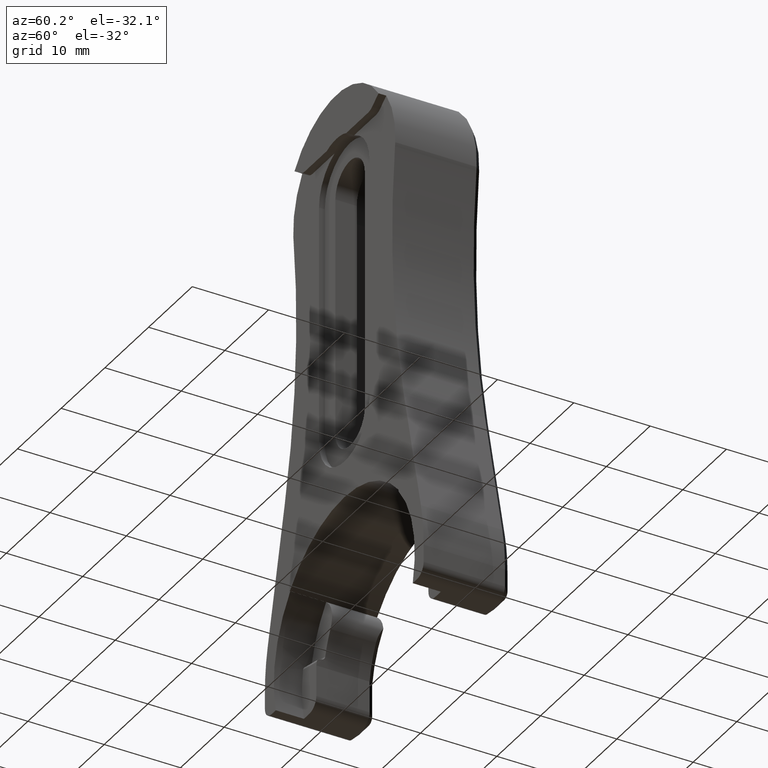
[diagram: clean part render]
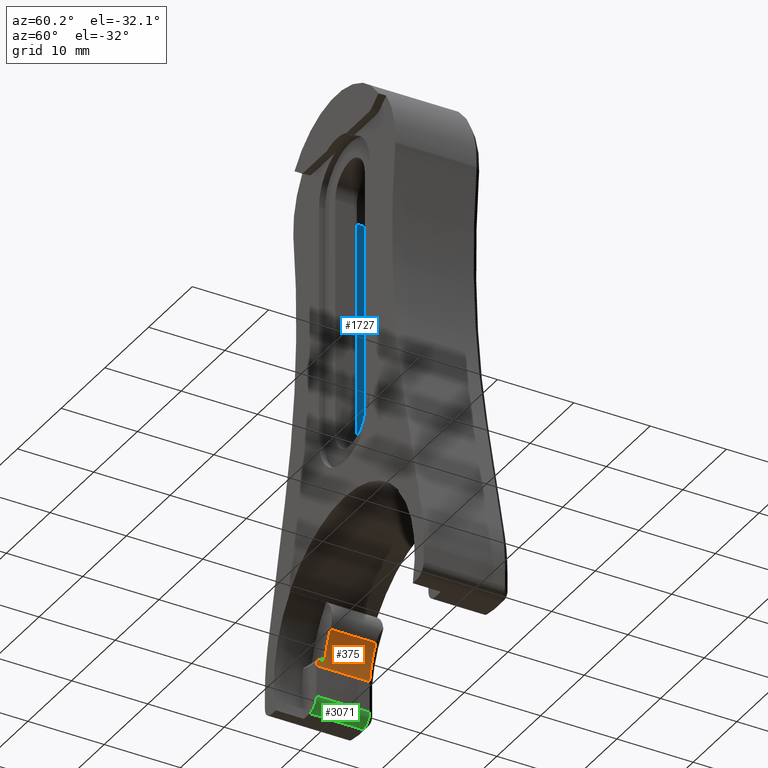
[diagram: same view with three faces highlighted in distinct colors, each labeled with its STEP entity id]
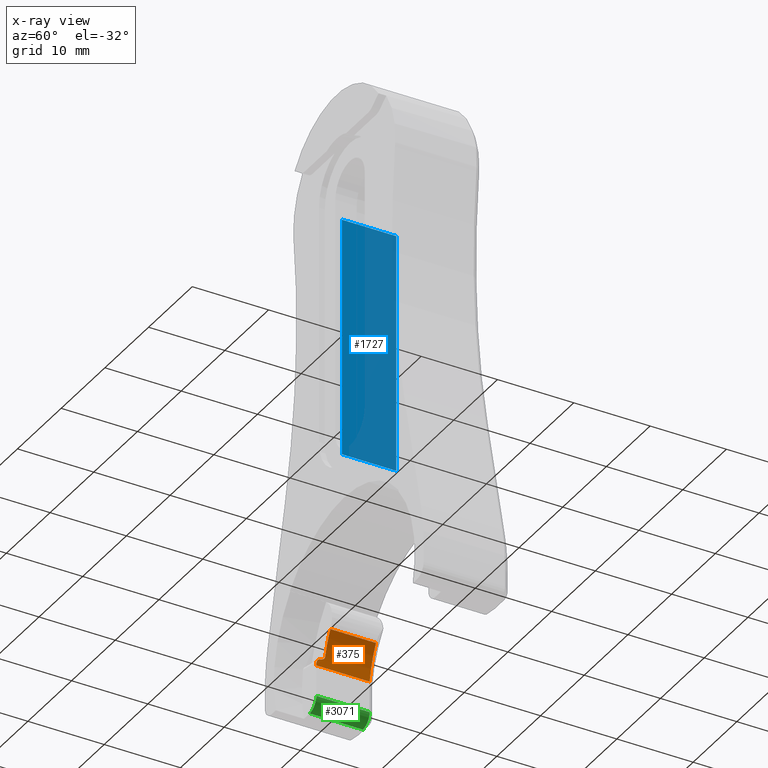
[diagram: x-ray of the same camera — body ghosted, the three highlighted faces saturated]
A machine part, auxiliary view with three faces highlighted in distinct colors.
The next image is the same camera in x-ray (body ghosted, the three faces saturated) — at least one of them is partly hidden behind the body in this view.
Their STEP definitions:

[orange] entity #375 — the highlighted cylindrical surface (partial cylindrical patch) has radius 12.954 mm, axis along (-0, -1, -0).
#39 = AXIS2_PLACEMENT_3D ( 'NONE', #118, #2555, #482 ) ;
#118 = CARTESIAN_POINT ( 'NONE',  ( 0.0000000000000000000, -0.08000000000000000200, 0.0000000000000000000 ) ) ;
#151 = CARTESIAN_POINT ( 'NONE',  ( -0.5026297753058284200, -0.08000000000000000200, 0.08639044493468246700 ) ) ;
#375 = ADVANCED_FACE ( 'NONE', ( #2911 ), #2490, .F. ) ;
#436 = EDGE_CURVE ( 'NONE', #508, #3208, #629, .T. ) ;
#482 = DIRECTION ( 'NONE',  ( 0.0000000000000000000, 0.0000000000000000000, 1.000000000000000000 ) ) ;
#508 = VERTEX_POINT ( 'NONE', #3162 ) ;
#527 = VECTOR ( 'NONE', #808, 39.37007874015748100 ) ;
#546 = DIRECTION ( 'NONE',  ( 0.0000000000000000000, 0.0000000000000000000, 1.000000000000000000 ) ) ;
#595 = CARTESIAN_POINT ( 'NONE',  ( -0.4475702154221147800, -0.03999999999999998000, 0.2445013338757107700 ) ) ;
#629 = LINE ( 'NONE', #1860, #527 ) ;
#687 = AXIS2_PLACEMENT_3D ( 'NONE', #1244, #3284, #2051 ) ;
#730 = AXIS2_PLACEMENT_3D ( 'NONE', #1785, #4132, #2132 ) ;
#808 = DIRECTION ( 'NONE',  ( -0.0000000000000000000, -1.000000000000000000, -0.0000000000000000000 ) ) ;
#843 = B_SPLINE_CURVE_WITH_KNOTS ( 'NONE', 3,
 ( #3567, #3898, #1899, #4231, #2221, #151 ),
 .UNSPECIFIED., .F., .F.,
 ( 4, 2, 4 ),
 ( 0.0000000000000000000, 0.0003968500244645409300, 0.0007937000489290813200 ),
 .UNSPECIFIED. ) ;
#886 = EDGE_CURVE ( 'NONE', #954, #2440, #2779, .T. ) ;
#954 = VERTEX_POINT ( 'NONE', #2237 ) ;
#1105 = VERTEX_POINT ( 'NONE', #1755 ) ;
#1244 = CARTESIAN_POINT ( 'NONE',  ( 0.0000000000000000000, 0.2249999999999999800, 0.0000000000000000000 ) ) ;
#1302 = ORIENTED_EDGE ( 'NONE', *, *, #1303, .T. ) ;
#1303 = EDGE_CURVE ( 'NONE', #2181, #2440, #4048, .T. ) ;
#1326 = ORIENTED_EDGE ( 'NONE', *, *, #3887, .T. ) ;
#1426 = CARTESIAN_POINT ( 'NONE',  ( -0.4967941596741303200, -0.04216413194460816300, 0.1153654393384120500 ) ) ;
#1755 = CARTESIAN_POINT ( 'NONE',  ( -0.4988552763742407100, -0.05999999999999999800, 0.1060349623170576100 ) ) ;
#1770 = CARTESIAN_POINT ( 'NONE',  ( -0.4988552763742408700, -0.05471701932634294400, 0.1060349623170576100 ) ) ;
#1780 = ORIENTED_EDGE ( 'NONE', *, *, #436, .F. ) ;
#1785 = CARTESIAN_POINT ( 'NONE',  ( 0.0000000000000000000, 0.1949999999999989500, 0.0000000000000000000 ) ) ;
#1800 = CARTESIAN_POINT ( 'NONE',  ( -0.5049999999999997800, -0.08000000000000000200, 0.07123903424387713300 ) ) ;
#1860 = CARTESIAN_POINT ( 'NONE',  ( -0.5049999999999997800, 0.2249999999999999800, 0.07123903424387713300 ) ) ;
#1878 = B_SPLINE_CURVE_WITH_KNOTS ( 'NONE', 3,
 ( #3113, #3449, #1426, #3786, #1770, #4123 ),
 .UNSPECIFIED., .F., .F.,
 ( 4, 2, 4 ),
 ( 0.0000000000000000000, 0.0003968507771239153700, 0.0007937015542478307500 ),
 .UNSPECIFIED. ) ;
#1899 = CARTESIAN_POINT ( 'NONE',  ( -0.4993142829583955800, -0.07044910917495599000, 0.1039175098293368100 ) ) ;
#1922 = EDGE_CURVE ( 'NONE', #3593, #3208, #4098, .T. ) ;
#2023 = EDGE_CURVE ( 'NONE', #1105, #3593, #843, .T. ) ;
#2051 = DIRECTION ( 'NONE',  ( 0.0000000000000000000, 0.0000000000000000000, -1.000000000000000000 ) ) ;
#2095 = CIRCLE ( 'NONE', #730, 0.5100000000000000100 ) ;
#2132 = DIRECTION ( 'NONE',  ( 0.0000000000000000000, 0.0000000000000000000, 1.000000000000000000 ) ) ;
#2181 = VERTEX_POINT ( 'NONE', #3769 ) ;
#2221 = CARTESIAN_POINT ( 'NONE',  ( -0.5017348762869269200, -0.08000000000000000200, 0.09159707274094018600 ) ) ;
#2237 = CARTESIAN_POINT ( 'NONE',  ( -0.4943133076731181000, -0.03999999999999998000, 0.1255163489640346900 ) ) ;
#2238 = ORIENTED_EDGE ( 'NONE', *, *, #886, .F. ) ;
#2440 = VERTEX_POINT ( 'NONE', #595 ) ;
#2490 = CYLINDRICAL_SURFACE ( 'NONE', #687, 0.5100000000000000100 ) ;
#2518 = CARTESIAN_POINT ( 'NONE',  ( -0.4475702154221147800, 0.2249999999999999800, 0.2445013338757107700 ) ) ;
#2555 = DIRECTION ( 'NONE',  ( -0.0000000000000000000, -1.000000000000000000, -0.0000000000000000000 ) ) ;
#2723 = AXIS2_PLACEMENT_3D ( 'NONE', #2918, #4269, #546 ) ;
#2779 = CIRCLE ( 'NONE', #2723, 0.5100000000000000100 ) ;
#2870 = DIRECTION ( 'NONE',  ( -0.0000000000000000000, -1.000000000000000000, -0.0000000000000000000 ) ) ;
#2911 = FACE_OUTER_BOUND ( 'NONE', #4220, .T. ) ;
#2918 = CARTESIAN_POINT ( 'NONE',  ( 0.0000000000000000000, -0.03999999999999998000, 0.0000000000000000000 ) ) ;
#3113 = CARTESIAN_POINT ( 'NONE',  ( -0.4943133076731181000, -0.03999999999999998000, 0.1255163489640346900 ) ) ;
#3160 = VECTOR ( 'NONE', #2870, 39.37007874015748100 ) ;
#3162 = CARTESIAN_POINT ( 'NONE',  ( -0.5049999999999997800, 0.1949999999999989500, 0.07123903424387713300 ) ) ;
#3208 = VERTEX_POINT ( 'NONE', #1800 ) ;
#3284 = DIRECTION ( 'NONE',  ( -0.0000000000000000000, -1.000000000000000000, -0.0000000000000000000 ) ) ;
#3376 = ORIENTED_EDGE ( 'NONE', *, *, #3634, .T. ) ;
#3449 = CARTESIAN_POINT ( 'NONE',  ( -0.4956134951637739000, -0.03999999999999998000, 0.1203959006367377000 ) ) ;
#3567 = CARTESIAN_POINT ( 'NONE',  ( -0.4988552763742407100, -0.05999999999999999800, 0.1060349623170576100 ) ) ;
#3593 = VERTEX_POINT ( 'NONE', #3774 ) ;
#3634 = EDGE_CURVE ( 'NONE', #954, #1105, #1878, .T. ) ;
#3769 = CARTESIAN_POINT ( 'NONE',  ( -0.4475702154221147800, 0.1949999999999989200, 0.2445013338757107700 ) ) ;
#3774 = CARTESIAN_POINT ( 'NONE',  ( -0.5026297753058284200, -0.08000000000000000200, 0.08639044493468246700 ) ) ;
#3786 = CARTESIAN_POINT ( 'NONE',  ( -0.4984117876158573000, -0.04953812804358726000, 0.1081633562979417700 ) ) ;
#3887 = EDGE_CURVE ( 'NONE', #508, #2181, #2095, .T. ) ;
#3898 = CARTESIAN_POINT ( 'NONE',  ( -0.4988552763742406500, -0.06528298783087031800, 0.1060349623170576000 ) ) ;
#4020 = ORIENTED_EDGE ( 'NONE', *, *, #2023, .T. ) ;
#4048 = LINE ( 'NONE', #2518, #3160 ) ;
#4098 = CIRCLE ( 'NONE', #39, 0.5100000000000000100 ) ;
#4123 = CARTESIAN_POINT ( 'NONE',  ( -0.4988552763742407100, -0.05999999999999999800, 0.1060349623170576100 ) ) ;
#4132 = DIRECTION ( 'NONE',  ( -0.0000000000000000000, 1.000000000000000000, -0.0000000000000000000 ) ) ;
#4220 = EDGE_LOOP ( 'NONE', ( #2238, #3376, #4020, #4261, #1780, #1326, #1302 ) ) ;
#4231 = CARTESIAN_POINT ( 'NONE',  ( -0.5007649530336790700, -0.07782835552271595600, 0.09668538580656371700 ) ) ;
#4261 = ORIENTED_EDGE ( 'NONE', *, *, #1922, .T. ) ;
#4269 = DIRECTION ( 'NONE',  ( 0.0000000000000000000, 1.000000000000000000, -0.0000000000000000000 ) ) ;

[blue] entity #1727 — the highlighted planar face has unit normal (1, 0, -0).
#267 = VERTEX_POINT ( 'NONE', #3447 ) ;
#315 = DIRECTION ( 'NONE',  ( -0.0000000000000000000, 1.000000000000000000, -0.0000000000000000000 ) ) ;
#339 = CARTESIAN_POINT ( 'NONE',  ( -0.2655000000000001200, -0.08499999999999997800, 0.0007937572898362619500 ) ) ;
#396 = EDGE_CURVE ( 'NONE', #267, #2687, #4248, .T. ) ;
#455 = CARTESIAN_POINT ( 'NONE',  ( -0.2655000000000001200, 0.1949999999999997600, 0.0007937572898362619500 ) ) ;
#519 = VERTEX_POINT ( 'NONE', #1809 ) ;
#559 = VECTOR ( 'NONE', #2426, 39.37007874015748100 ) ;
#679 = LINE ( 'NONE', #339, #559 ) ;
#757 = VECTOR ( 'NONE', #315, 39.37007874015748100 ) ;
#926 = DIRECTION ( 'NONE',  ( 1.000000000000000000, 0.0000000000000000000, -1.376939512935616900E-016 ) ) ;
#1017 = CARTESIAN_POINT ( 'NONE',  ( -0.2655000000000000100, -0.08499999999999997800, 1.055000000000000200 ) ) ;
#1243 = EDGE_LOOP ( 'NONE', ( #3611, #4065, #1515, #1739 ) ) ;
#1260 = PLANE ( 'NONE',  #2076 ) ;
#1515 = ORIENTED_EDGE ( 'NONE', *, *, #3732, .F. ) ;
#1586 = VECTOR ( 'NONE', #3534, 39.37007874015748100 ) ;
#1727 = ADVANCED_FACE ( 'NONE', ( #4357 ), #1260, .T. ) ;
#1739 = ORIENTED_EDGE ( 'NONE', *, *, #2154, .T. ) ;
#1809 = CARTESIAN_POINT ( 'NONE',  ( -0.2654999999999998500, 0.1949999999999997600, 2.294999999999999500 ) ) ;
#1835 = CARTESIAN_POINT ( 'NONE',  ( -0.2654999999999998500, -0.08499999999999997800, 2.294999999999999500 ) ) ;
#2076 = AXIS2_PLACEMENT_3D ( 'NONE', #2980, #926, #3314 ) ;
#2154 = EDGE_CURVE ( 'NONE', #2366, #267, #679, .T. ) ;
#2344 = DIRECTION ( 'NONE',  ( -0.0000000000000000000, 1.000000000000000000, -0.0000000000000000000 ) ) ;
#2366 = VERTEX_POINT ( 'NONE', #1835 ) ;
#2426 = DIRECTION ( 'NONE',  ( -1.376939512935616900E-016, 0.0000000000000000000, -1.000000000000000000 ) ) ;
#2605 = LINE ( 'NONE', #455, #1586 ) ;
#2687 = VERTEX_POINT ( 'NONE', #3097 ) ;
#2823 = CARTESIAN_POINT ( 'NONE',  ( -0.2654999999999998500, -0.08499999999999997800, 2.294999999999999500 ) ) ;
#2980 = CARTESIAN_POINT ( 'NONE',  ( -0.2655000000000001200, -0.08499999999999997800, 0.0007937572898362619500 ) ) ;
#3097 = CARTESIAN_POINT ( 'NONE',  ( -0.2655000000000000100, 0.1949999999999997600, 1.055000000000000200 ) ) ;
#3302 = VECTOR ( 'NONE', #2344, 39.37007874015748100 ) ;
#3314 = DIRECTION ( 'NONE',  ( -1.376939512935616900E-016, 0.0000000000000000000, -1.000000000000000000 ) ) ;
#3379 = EDGE_CURVE ( 'NONE', #2687, #519, #2605, .T. ) ;
#3447 = CARTESIAN_POINT ( 'NONE',  ( -0.2655000000000000100, -0.08499999999999997800, 1.055000000000000200 ) ) ;
#3534 = DIRECTION ( 'NONE',  ( 1.376939512935616900E-016, 0.0000000000000000000, 1.000000000000000000 ) ) ;
#3611 = ORIENTED_EDGE ( 'NONE', *, *, #396, .T. ) ;
#3732 = EDGE_CURVE ( 'NONE', #2366, #519, #4092, .T. ) ;
#4065 = ORIENTED_EDGE ( 'NONE', *, *, #3379, .T. ) ;
#4092 = LINE ( 'NONE', #2823, #3302 ) ;
#4248 = LINE ( 'NONE', #1017, #757 ) ;
#4357 = FACE_OUTER_BOUND ( 'NONE', #1243, .T. ) ;

[green] entity #3071 — the highlighted cylindrical surface (edge-blend (fillet) strip) has radius 1.524 mm, axis along (0, -1, 0).
#82 = ORIENTED_EDGE ( 'NONE', *, *, #1265, .F. ) ;
#94 = EDGE_CURVE ( 'NONE', #290, #1981, #96, .T. ) ;
#96 = CIRCLE ( 'NONE', #241, 0.05999999999999999800 ) ;
#176 = EDGE_LOOP ( 'NONE', ( #82, #3149, #732, #1921 ) ) ;
#241 = AXIS2_PLACEMENT_3D ( 'NONE', #2209, #4223, #1879 ) ;
#290 = VERTEX_POINT ( 'NONE', #3112 ) ;
#391 = CYLINDRICAL_SURFACE ( 'NONE', #2074, 0.06000000000000001200 ) ;
#530 = DIRECTION ( 'NONE',  ( -0.0000000000000000000, -1.000000000000000000, -0.0000000000000000000 ) ) ;
#561 = VECTOR ( 'NONE', #2000, 39.37007874015748100 ) ;
#732 = ORIENTED_EDGE ( 'NONE', *, *, #3729, .F. ) ;
#974 = EDGE_CURVE ( 'NONE', #2496, #1143, #2455, .T. ) ;
#1001 = DIRECTION ( 'NONE',  ( 0.0000000000000000000, 0.0000000000000000000, -1.000000000000000000 ) ) ;
#1143 = VERTEX_POINT ( 'NONE', #1447 ) ;
#1265 = EDGE_CURVE ( 'NONE', #290, #2496, #1563, .T. ) ;
#1337 = DIRECTION ( 'NONE',  ( 0.0000000000000000000, -1.000000000000000000, 0.0000000000000000000 ) ) ;
#1447 = CARTESIAN_POINT ( 'NONE',  ( -0.5049999999999998900, -0.08000000000000000200, -0.09000000000000002400 ) ) ;
#1494 = CARTESIAN_POINT ( 'NONE',  ( -0.5649999999999999500, 0.2249999999999999800, -0.1499999999999999700 ) ) ;
#1563 = LINE ( 'NONE', #1494, #2375 ) ;
#1686 = CARTESIAN_POINT ( 'NONE',  ( -0.5649999999999999500, 0.2249999999999999800, -0.08999999999999996900 ) ) ;
#1879 = DIRECTION ( 'NONE',  ( 0.0000000000000000000, 0.0000000000000000000, 1.000000000000000000 ) ) ;
#1884 = CARTESIAN_POINT ( 'NONE',  ( -0.5049999999999998900, 0.1949999999999989500, -0.09000000000000002400 ) ) ;
#1921 = ORIENTED_EDGE ( 'NONE', *, *, #974, .F. ) ;
#1981 = VERTEX_POINT ( 'NONE', #1884 ) ;
#2000 = DIRECTION ( 'NONE',  ( -0.0000000000000000000, 1.000000000000000000, -0.0000000000000000000 ) ) ;
#2017 = CARTESIAN_POINT ( 'NONE',  ( -0.5649999999999999500, -0.08000000000000000200, -0.1499999999999999700 ) ) ;
#2074 = AXIS2_PLACEMENT_3D ( 'NONE', #1686, #1337, #1001 ) ;
#2209 = CARTESIAN_POINT ( 'NONE',  ( -0.5649999999999999500, 0.1949999999999989500, -0.08999999999999996900 ) ) ;
#2375 = VECTOR ( 'NONE', #4191, 39.37007874015748100 ) ;
#2455 = CIRCLE ( 'NONE', #3607, 0.05999999999999999800 ) ;
#2496 = VERTEX_POINT ( 'NONE', #2017 ) ;
#3071 = ADVANCED_FACE ( 'NONE', ( #4320 ), #391, .T. ) ;
#3112 = CARTESIAN_POINT ( 'NONE',  ( -0.5649999999999999500, 0.1949999999999989500, -0.1499999999999999700 ) ) ;
#3149 = ORIENTED_EDGE ( 'NONE', *, *, #94, .T. ) ;
#3273 = DIRECTION ( 'NONE',  ( 0.0000000000000000000, 0.0000000000000000000, 1.000000000000000000 ) ) ;
#3607 = AXIS2_PLACEMENT_3D ( 'NONE', #4255, #530, #3273 ) ;
#3729 = EDGE_CURVE ( 'NONE', #1143, #1981, #4205, .T. ) ;
#4008 = CARTESIAN_POINT ( 'NONE',  ( -0.5049999999999998900, 0.2249999999999999800, -0.09000000000000002400 ) ) ;
#4191 = DIRECTION ( 'NONE',  ( 0.0000000000000000000, -1.000000000000000000, 0.0000000000000000000 ) ) ;
#4205 = LINE ( 'NONE', #4008, #561 ) ;
#4223 = DIRECTION ( 'NONE',  ( 0.0000000000000000000, -1.000000000000000000, 0.0000000000000000000 ) ) ;
#4255 = CARTESIAN_POINT ( 'NONE',  ( -0.5649999999999999500, -0.08000000000000000200, -0.08999999999999996900 ) ) ;
#4320 = FACE_OUTER_BOUND ( 'NONE', #176, .T. ) ;